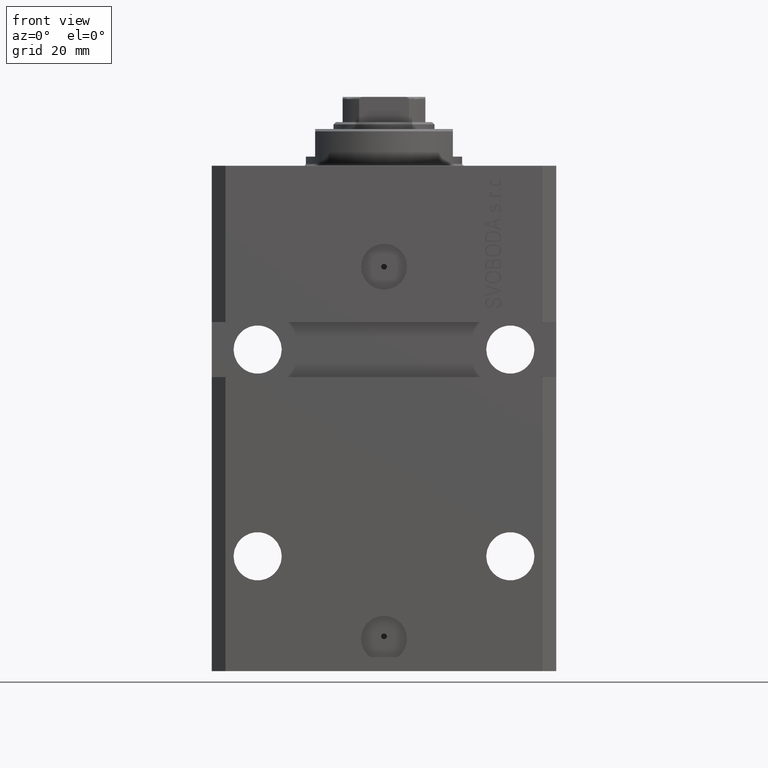
[diagram: clean part render]
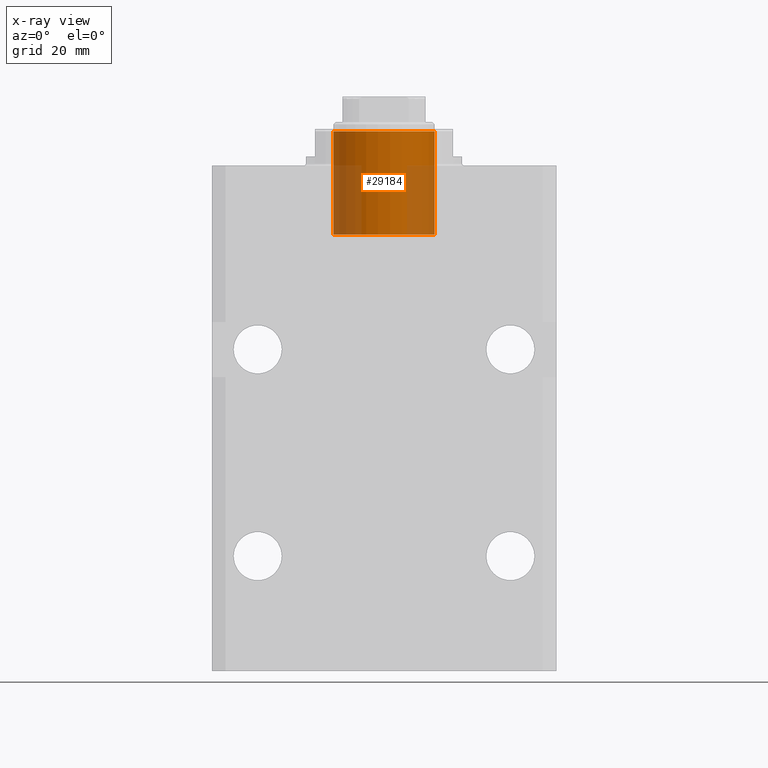
[diagram: x-ray — body ghosted, one internal face saturated and labeled with its STEP entity id]
A machine part, front view, then the same camera in x-ray: the body is ghosted and one INTERNAL B-rep face — a face not visible from any outside direction — is saturated and labeled: STEP entity #29184.
In plain terms, the highlighted cylindrical surface (partial cylindrical patch) has radius 11 mm, axis along (0, -0, 1).
Its self-contained STEP definition (entity closure, byte-faithful):
#5 = FACE_OUTER_BOUND ( 'NONE', #28944, .T. ) ;
#3883 = AXIS2_PLACEMENT_3D ( 'NONE', #33197, #11159, #10911 ) ;
#5673 = CARTESIAN_POINT ( 'NONE',  ( 0.000000000000000000, 0.000000000000000000, -7.500000000000000000 ) ) ;
#7083 = ORIENTED_EDGE ( 'NONE', *, *, #23097, .F. ) ;
#8902 = AXIS2_PLACEMENT_3D ( 'NONE', #5673, #42248, #31353 ) ;
#10911 = DIRECTION ( 'NONE',  ( -1.000000000000000000, 0.000000000000000000, 0.000000000000000000 ) ) ;
#11159 = DIRECTION ( 'NONE',  ( -0.000000000000000000, -0.000000000000000000, -1.000000000000000000 ) ) ;
#11639 = EDGE_CURVE ( 'NONE', #34089, #26985, #29782, .T. ) ;
#12351 = DIRECTION ( 'NONE',  ( -1.000000000000000000, 0.000000000000000000, 0.000000000000000000 ) ) ;
#12688 = VERTEX_POINT ( 'NONE', #28596 ) ;
#13558 = EDGE_CURVE ( 'NONE', #31934, #26985, #33315, .T. ) ;
#14314 = DIRECTION ( 'NONE',  ( 0.000000000000000000, 0.000000000000000000, -1.000000000000000000 ) ) ;
#16146 = CIRCLE ( 'NONE', #17709, 11.00000000000000000 ) ;
#17709 = AXIS2_PLACEMENT_3D ( 'NONE', #33918, #14314, #12351 ) ;
#18787 = CARTESIAN_POINT ( 'NONE',  ( -11.00000000000000000, 0.000000000000000000, 15.00000000000000000 ) ) ;
#23097 = EDGE_CURVE ( 'NONE', #12688, #31934, #16146, .T. ) ;
#23933 = ORIENTED_EDGE ( 'NONE', *, *, #11639, .T. ) ;
#25300 = LINE ( 'NONE', #46618, #47287 ) ;
#25673 = CYLINDRICAL_SURFACE ( 'NONE', #3883, 11.00000000000000000 ) ;
#26985 = VERTEX_POINT ( 'NONE', #35005 ) ;
#28596 = CARTESIAN_POINT ( 'NONE',  ( 11.00000000000000000, 1.347111479062088405E-15, 15.00000000000000000 ) ) ;
#28766 = ORIENTED_EDGE ( 'NONE', *, *, #32907, .T. ) ;
#28944 = EDGE_LOOP ( 'NONE', ( #7083, #28766, #23933, #36645 ) ) ;
#29184 = ADVANCED_FACE ( 'NONE', ( #5 ), #25673, .F. ) ;
#29782 = CIRCLE ( 'NONE', #8902, 11.00000000000000000 ) ;
#31353 = DIRECTION ( 'NONE',  ( -1.000000000000000000, 0.000000000000000000, 0.000000000000000000 ) ) ;
#31934 = VERTEX_POINT ( 'NONE', #35968 ) ;
#32821 = DIRECTION ( 'NONE',  ( -0.000000000000000000, -0.000000000000000000, -1.000000000000000000 ) ) ;
#32907 = EDGE_CURVE ( 'NONE', #12688, #34089, #25300, .T. ) ;
#33197 = CARTESIAN_POINT ( 'NONE',  ( 0.000000000000000000, 0.000000000000000000, 15.00000000000000000 ) ) ;
#33315 = LINE ( 'NONE', #18787, #45335 ) ;
#33918 = CARTESIAN_POINT ( 'NONE',  ( 0.000000000000000000, 0.000000000000000000, 15.00000000000000000 ) ) ;
#34089 = VERTEX_POINT ( 'NONE', #35928 ) ;
#35005 = CARTESIAN_POINT ( 'NONE',  ( -11.00000000000000000, 0.000000000000000000, -7.500000000000000000 ) ) ;
#35928 = CARTESIAN_POINT ( 'NONE',  ( 11.00000000000000000, 1.347111479062088405E-15, -7.500000000000000000 ) ) ;
#35968 = CARTESIAN_POINT ( 'NONE',  ( -11.00000000000000000, 0.000000000000000000, 15.00000000000000000 ) ) ;
#36645 = ORIENTED_EDGE ( 'NONE', *, *, #13558, .F. ) ;
#36712 = DIRECTION ( 'NONE',  ( -0.000000000000000000, -0.000000000000000000, -1.000000000000000000 ) ) ;
#42248 = DIRECTION ( 'NONE',  ( 0.000000000000000000, 0.000000000000000000, -1.000000000000000000 ) ) ;
#45335 = VECTOR ( 'NONE', #36712, 1000.000000000000000 ) ;
#46618 = CARTESIAN_POINT ( 'NONE',  ( 11.00000000000000000, 1.347111479062088405E-15, 15.00000000000000000 ) ) ;
#47287 = VECTOR ( 'NONE', #32821, 1000.000000000000000 ) ;